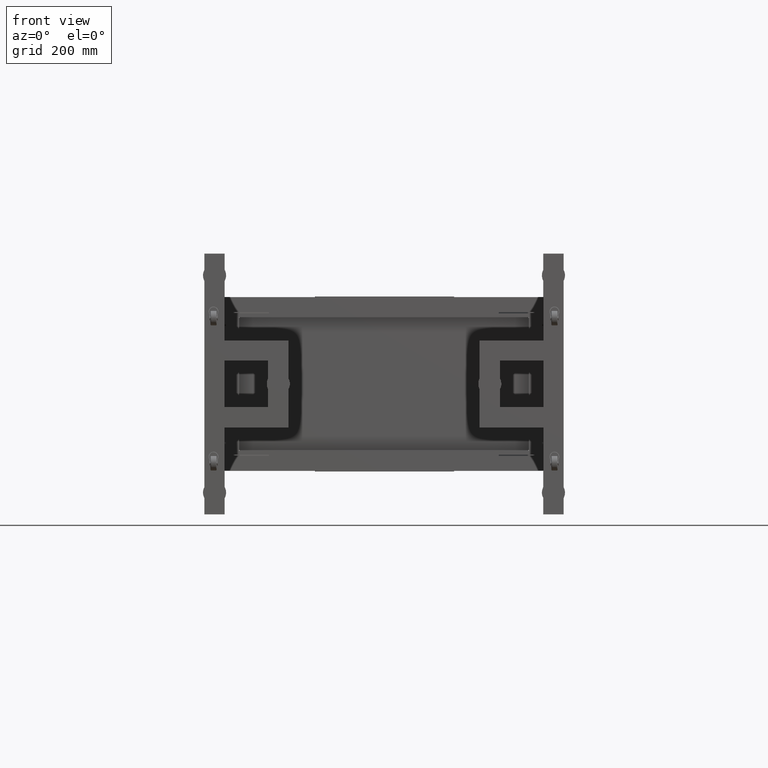
[diagram: clean part render]
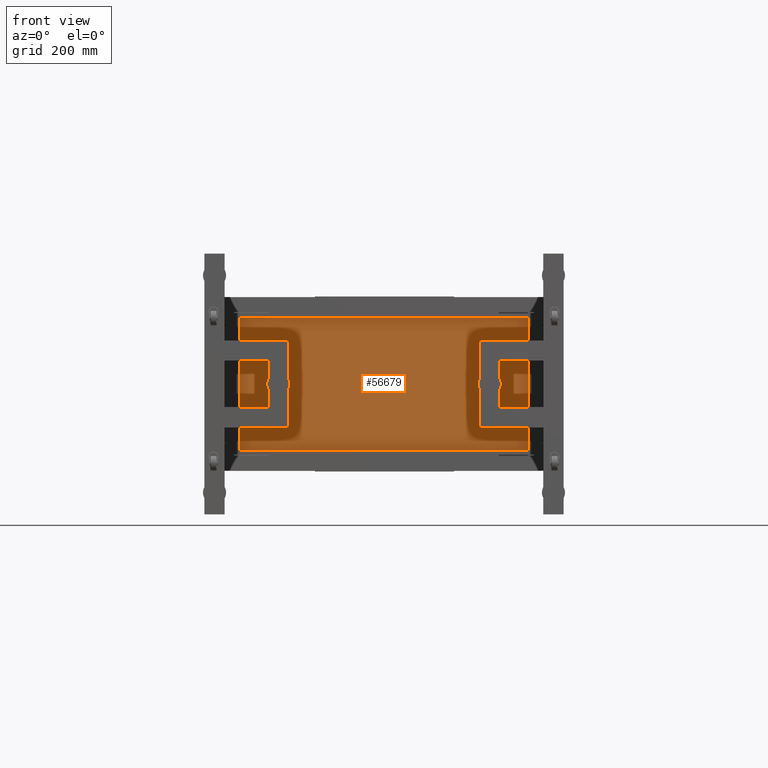
[diagram: same view with one face highlighted and labeled with its STEP entity id]
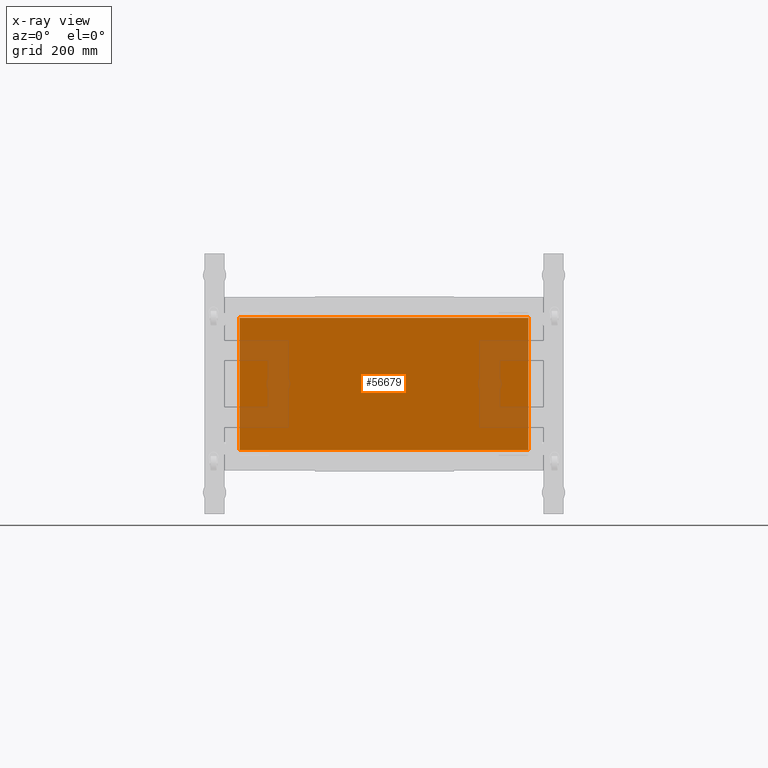
[diagram: x-ray of the same camera — body ghosted, the highlighted face saturated]
A machine part, front view. The second image highlights one B-rep face of the part: STEP entity #56679.
The next image is the same camera in x-ray: the body ghosted, the highlighted face saturated — about 15% of this face is hidden behind the body in this view.
In plain terms, the highlighted planar face has unit normal (0, 1, -0).
Its self-contained STEP definition (entity closure, byte-faithful):
#46 = DIRECTION ( 'NONE',  ( 0.000000000000000000, 1.000000000000000472E-15, 1.000000000000000000 ) ) ;
#2284 = ORIENTED_EDGE ( 'NONE', *, *, #64208, .F. ) ;
#5566 = VECTOR ( 'NONE', #66955, 1000.000000000000000 ) ;
#10722 = LINE ( 'NONE', #67888, #40707 ) ;
#11142 = VERTEX_POINT ( 'NONE', #21523 ) ;
#11226 = CARTESIAN_POINT ( 'NONE',  ( -219.6824874371841076, 555.4410804020127443, -228.4899999999998954 ) ) ;
#13617 = EDGE_CURVE ( 'NONE', #31212, #35078, #18151, .T. ) ;
#13701 = EDGE_CURVE ( 'NONE', #31212, #11142, #26951, .T. ) ;
#13703 = CARTESIAN_POINT ( 'NONE',  ( -2316.662487437185973, 555.4410804020128580, 228.4900000000001228 ) ) ;
#14612 = PLANE ( 'NONE',  #62257 ) ;
#15535 = VECTOR ( 'NONE', #58654, 1000.000000000000000 ) ;
#18151 = LINE ( 'NONE', #45957, #5566 ) ;
#19427 = DIRECTION ( 'NONE',  ( 0.000000000000000000, 1.000000000000000000, -1.000000000000000472E-15 ) ) ;
#19547 = LINE ( 'NONE', #13703, #62761 ) ;
#21523 = CARTESIAN_POINT ( 'NONE',  ( -1216.662487437185973, 555.4410804020124033, -228.4899999999998954 ) ) ;
#26951 = LINE ( 'NONE', #53811, #15535 ) ;
#27865 = ORIENTED_EDGE ( 'NONE', *, *, #62175, .F. ) ;
#31212 = VERTEX_POINT ( 'NONE', #11226 ) ;
#32798 = EDGE_LOOP ( 'NONE', ( #2284, #27865, #47516, #67949 ) ) ;
#34691 = DIRECTION ( 'NONE',  ( 1.000000000000000000, -0.000000000000000000, 0.000000000000000000 ) ) ;
#34918 = CARTESIAN_POINT ( 'NONE',  ( -1118.172487437186192, 555.4410804020126307, 1.110223024625156540E-13 ) ) ;
#35078 = VERTEX_POINT ( 'NONE', #44884 ) ;
#40442 = DIRECTION ( 'NONE',  ( 0.000000000000000000, 1.000000000000000472E-15, 1.000000000000000000 ) ) ;
#40707 = VECTOR ( 'NONE', #46, 1000.000000000000000 ) ;
#44884 = CARTESIAN_POINT ( 'NONE',  ( -219.6824874371841076, 555.4410804020131991, 228.4900000000081093 ) ) ;
#45613 = FACE_OUTER_BOUND ( 'NONE', #32798, .T. ) ;
#45957 = CARTESIAN_POINT ( 'NONE',  ( -219.6824874371841076, 555.4410804020127443, -228.4899999999998954 ) ) ;
#47516 = ORIENTED_EDGE ( 'NONE', *, *, #13701, .F. ) ;
#52643 = VERTEX_POINT ( 'NONE', #59815 ) ;
#53811 = CARTESIAN_POINT ( 'NONE',  ( 80.31751256281394546, 555.4410804020124033, -228.4899999999998954 ) ) ;
#56679 = ADVANCED_FACE ( 'NONE', ( #45613 ), #14612, .F. ) ;
#58654 = DIRECTION ( 'NONE',  ( -1.000000000000000000, 0.000000000000000000, 0.000000000000000000 ) ) ;
#59815 = CARTESIAN_POINT ( 'NONE',  ( -1216.662487437185973, 555.4410804020128580, 228.4900000000081093 ) ) ;
#62175 = EDGE_CURVE ( 'NONE', #11142, #52643, #10722, .T. ) ;
#62257 = AXIS2_PLACEMENT_3D ( 'NONE', #34918, #19427, #40442 ) ;
#62761 = VECTOR ( 'NONE', #34691, 1000.000000000000000 ) ;
#64208 = EDGE_CURVE ( 'NONE', #52643, #35078, #19547, .T. ) ;
#66955 = DIRECTION ( 'NONE',  ( -2.653611717788264139E-31, 1.000000000000000472E-15, 1.000000000000000000 ) ) ;
#67888 = CARTESIAN_POINT ( 'NONE',  ( -1216.662487437185973, 555.4410804020124033, -228.4899999999998954 ) ) ;
#67949 = ORIENTED_EDGE ( 'NONE', *, *, #13617, .T. ) ;